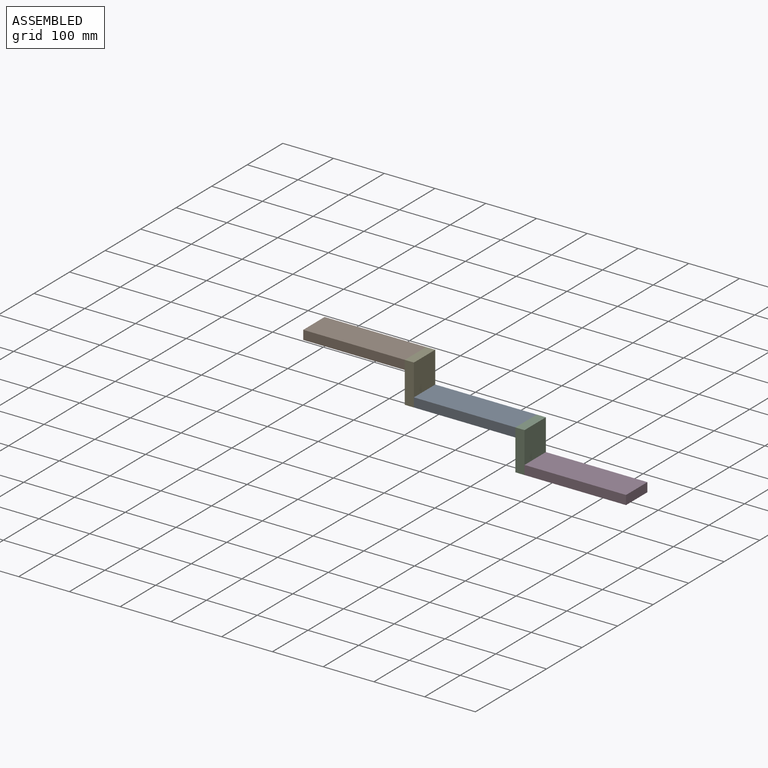
[diagram: assembled view]
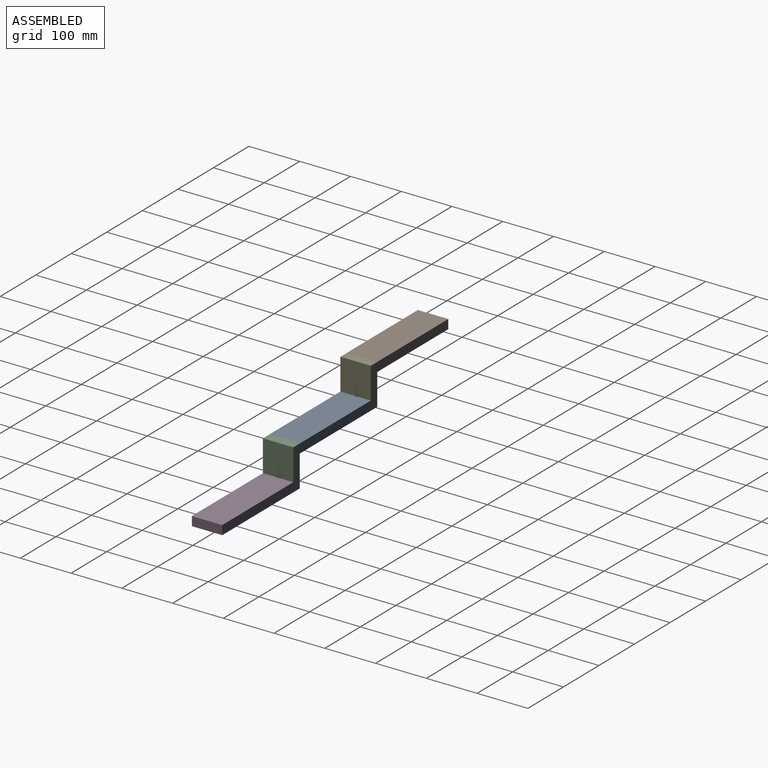
[diagram: assembled view, second angle]
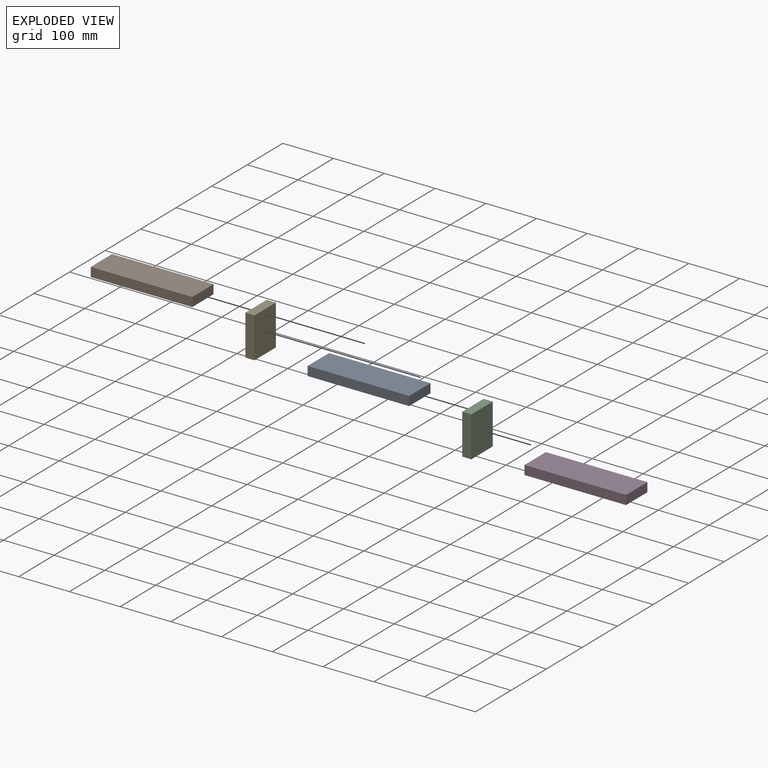
[diagram: exploded view]
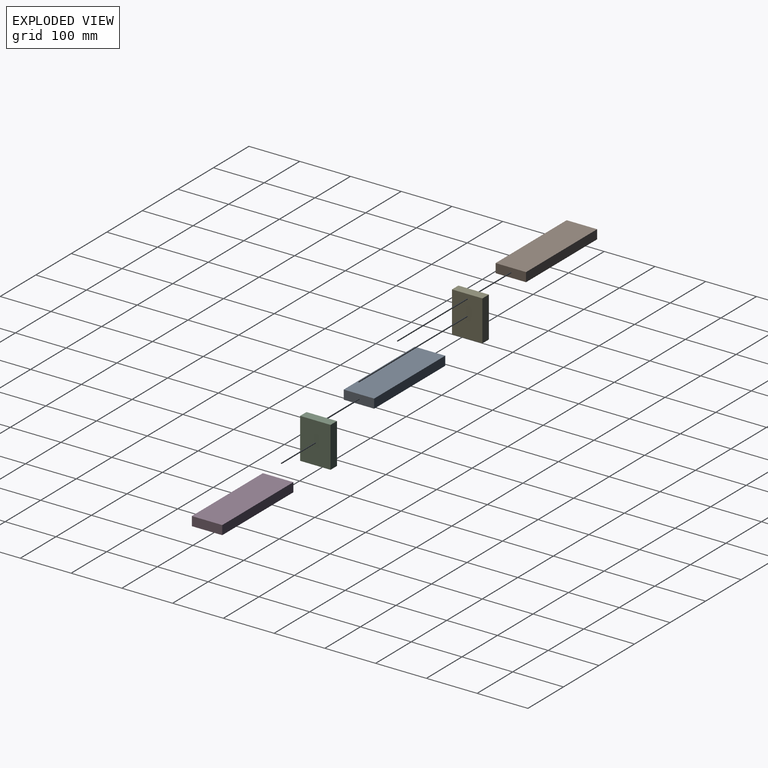
[diagram: exploded view, second angle]
ASSEMBLY  parts=5 mates=4
PART A: 6 faces, bbox 200x18x60 mm
  f0: plane 200x60mm, normal (0,1,0), area 12000mm2, adj f1,f3,f4,f5
  f1: plane 60x18mm, normal (-1,0,0), area 1080mm2, adj f0,f2,f4,f5
  f2: plane 200x60mm, normal (0,-1,0), area 12000mm2, adj f1,f3,f4,f5
  f3: plane 60x18mm, normal (1,0,0), area 1080mm2, adj f0,f2,f4,f5
  f4: plane 200x18mm, normal (0,0,1), area 3600mm2, adj f0,f1,f2,f3
  f5: plane 200x18mm, normal (0,0,-1), area 3600mm2, adj f0,f1,f2,f3
PART B: same geometry as A
PART C: 6 faces, bbox 80x18x60 mm
  f0: plane 80x60mm, normal (0,1,0), area 4800mm2, adj f1,f3,f4,f5
  f1: plane 60x18mm, normal (-1,0,0), area 1080mm2, adj f0,f2,f4,f5
  f2: plane 80x60mm, normal (0,-1,0), area 4800mm2, adj f1,f3,f4,f5
  f3: plane 60x18mm, normal (1,0,0), area 1080mm2, adj f0,f2,f4,f5
  f4: plane 80x18mm, normal (0,0,1), area 1440mm2, adj f0,f1,f2,f3
  f5: plane 80x18mm, normal (0,0,-1), area 1440mm2, adj f0,f1,f2,f3
PART D: same geometry as A
PART E: same geometry as C
PLACE A rot(axis=(-1,0,0),90deg) t=(161.43,-131.21,52.25)mm
PLACE B rot(axis=(-1,0,0),90deg) t=(-56.57,-131.21,114.25)mm
PLACE C rot(axis=(-0.58,0.58,0.58),120deg) t=(266.69,-131.21,-22.97)mm
PLACE D rot(axis=(1,0,0),90deg) t=(379.43,-71.21,-49.77)mm
PLACE E rot(axis=(-0.58,0.58,0.58),120deg) t=(48.69,-131.21,39.03)mm
MATE fastened E.f0 <-> B.f3  axis (-1,0,0) through (22.53,-101.21,103.24)mm
MATE fastened A.f1 <-> E.f2  axis (-1,0,0) through (40.53,-101.21,23.24)mm
MATE fastened C.f0 <-> A.f3  axis (-1,0,0) through (240.53,-101.21,41.24)mm
MATE fastened D.f1 <-> C.f2  axis (-1,0,0) through (258.53,-101.21,-38.76)mm
